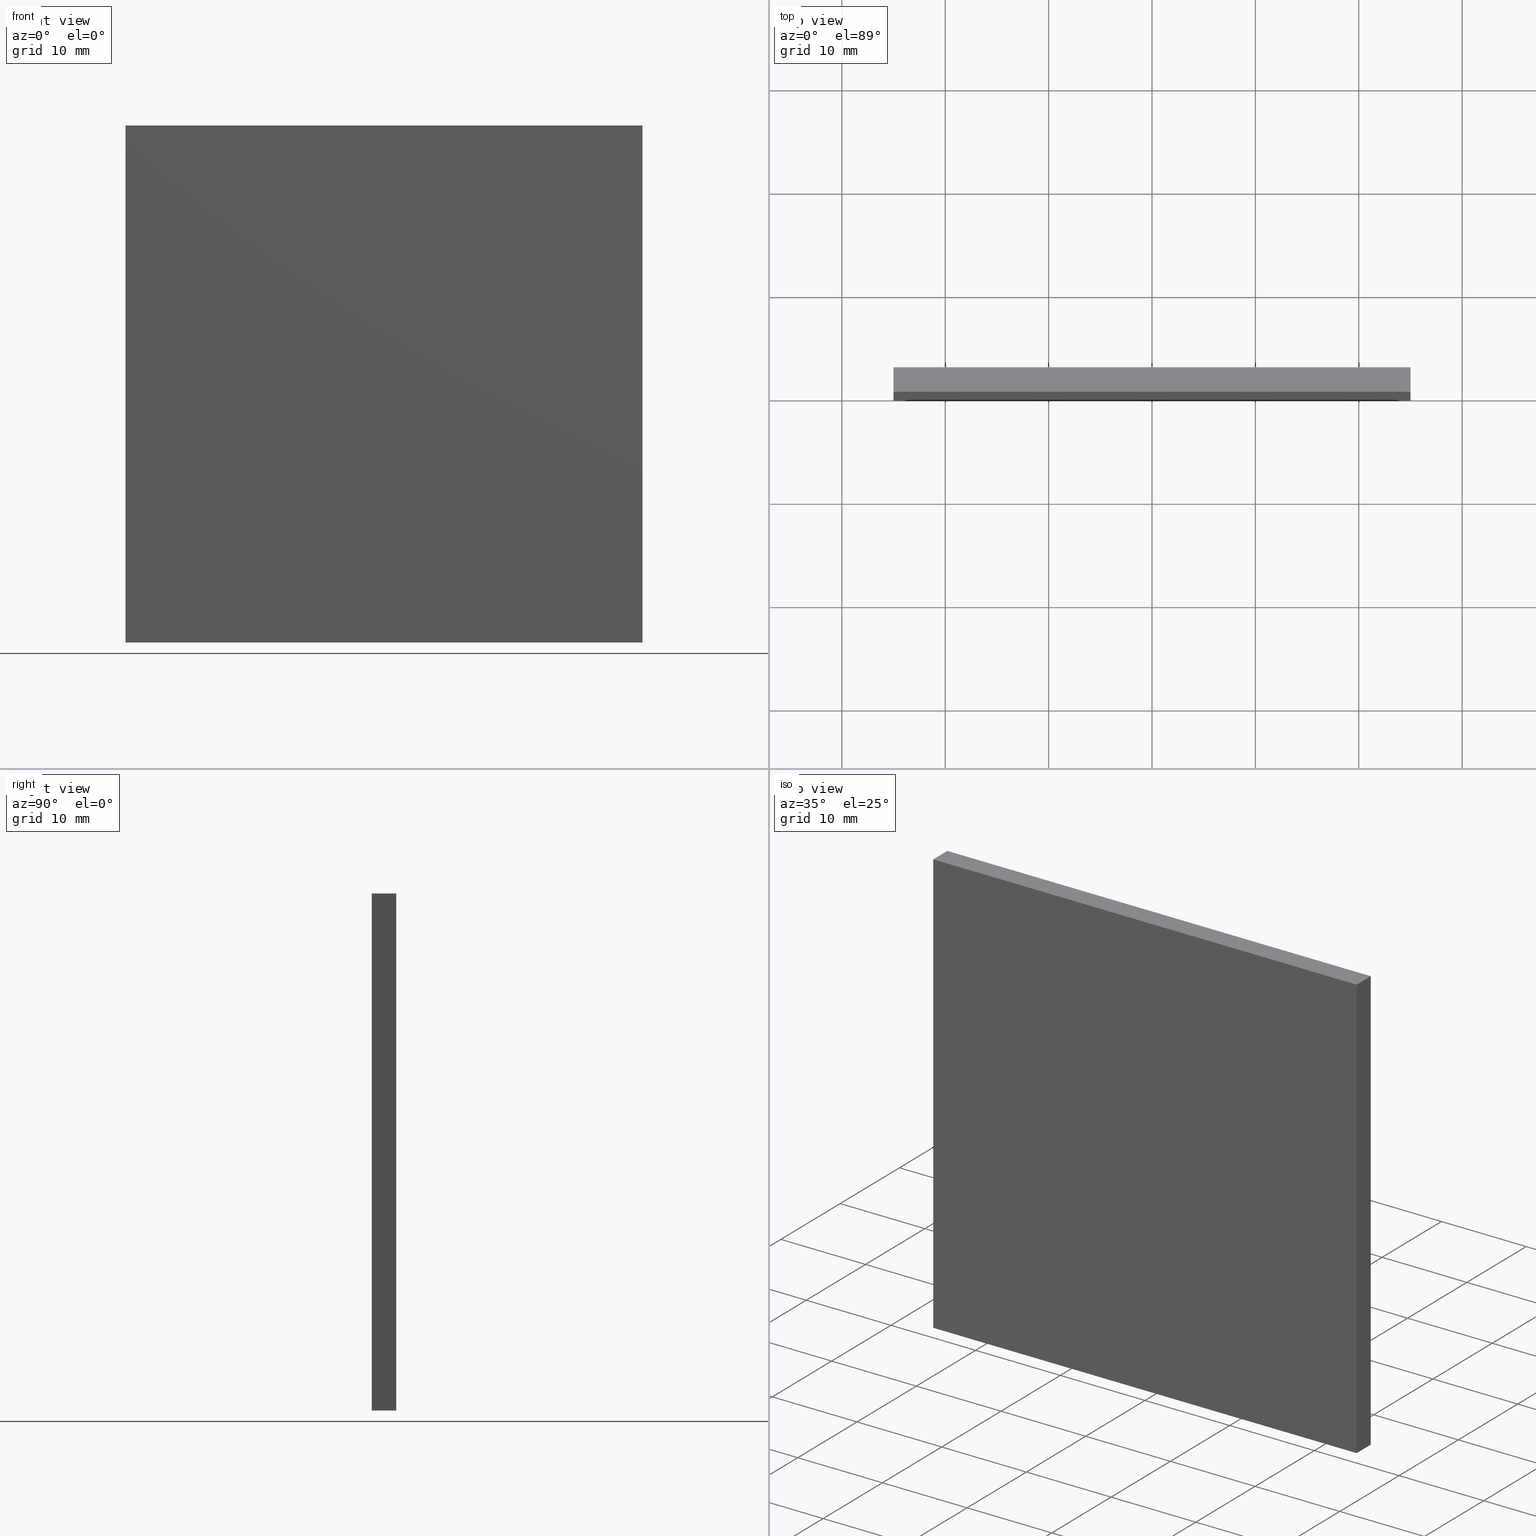
[diagram: canonical four-view strip — front | top / right | iso, engineering-drawing reading convention]
A machine part, canonical four-view strip (front | top / right | iso — engineering-drawing reading convention). The complete STEP part file that produces these views, byte-faithful:
ISO-10303-21;
HEADER;
FILE_DESCRIPTION (( 'STEP AP214' ),
    '1' );
FILE_NAME ('248609.STEP',
    '2019-08-06T06:06:45',
    ( 'user' ),
    ( '΢���й�' ),
    'SwSTEP 2.0',
    'SolidWorks 2016',
    '' );
FILE_SCHEMA (( 'AUTOMOTIVE_DESIGN' ));
ENDSEC;

DATA;
#1 = LINE ( 'NONE', #95, #177 ) ;
#2 = SURFACE_STYLE_USAGE ( .BOTH. , #91 ) ;
#3 = VECTOR ( 'NONE', #188, 1000.000000000000000 ) ;
#4 = CARTESIAN_POINT ( 'NONE',  ( 25.00000000000000000, 2.370000000000000100, -25.00000000000000400 ) ) ;
#5 = CARTESIAN_POINT ( 'NONE',  ( -25.00000000000000000, 2.370000000000000100, 24.99999999999999600 ) ) ;
#6 = PRESENTATION_LAYER_ASSIGNMENT (  '', '', ( #150 ) ) ;
#7 = ORIENTED_EDGE ( 'NONE', *, *, #22, .T. ) ;
#8 = EDGE_LOOP ( 'NONE', ( #94, #98, #54, #201 ) ) ;
#9 = ORIENTED_EDGE ( 'NONE', *, *, #180, .T. ) ;
#10 = EDGE_LOOP ( 'NONE', ( #71, #29, #23, #14 ) ) ;
#11 = VERTEX_POINT ( 'NONE', #141 ) ;
#12 = ADVANCED_FACE ( 'NONE', ( #17 ), #179, .F. ) ;
#13 = EDGE_CURVE ( 'NONE', #107, #34, #26, .T. ) ;
#14 = ORIENTED_EDGE ( 'NONE', *, *, #16, .F. ) ;
#15 = PRODUCT_DEFINITION_SHAPE ( 'NONE', 'NONE',  #33 ) ;
#16 = EDGE_CURVE ( 'NONE', #195, #107, #1, .T. ) ;
#17 = FACE_OUTER_BOUND ( 'NONE', #79, .T. ) ;
#18 = ORIENTED_EDGE ( 'NONE', *, *, #200, .T. ) ;
#19 = DIRECTION ( 'NONE',  ( 1.000000000000000000, 0.0000000000000000000, 0.0000000000000000000 ) ) ;
#20 = DIRECTION ( 'NONE',  ( -0.0000000000000000000, -1.000000000000000000, -0.0000000000000000000 ) ) ;
#21 = PRODUCT_DEFINITION_FORMATION_WITH_SPECIFIED_SOURCE ( '�κ�', '', #161, .NOT_KNOWN. ) ;
#22 = EDGE_CURVE ( 'NONE', #39, #11, #118, .T. ) ;
#23 = ORIENTED_EDGE ( 'NONE', *, *, #13, .F. ) ;
#24 = PLANE ( 'NONE',  #194 ) ;
#25 = CARTESIAN_POINT ( 'NONE',  ( 25.00000000000000000, 2.370000000000000100, 24.99999999999999600 ) ) ;
#26 = LINE ( 'NONE', #85, #48 ) ;
#27 = DIRECTION ( 'NONE',  ( -0.0000000000000000000, -0.0000000000000000000, 1.000000000000000000 ) ) ;
#28 = ORIENTED_EDGE ( 'NONE', *, *, #13, .T. ) ;
#29 = ORIENTED_EDGE ( 'NONE', *, *, #102, .F. ) ;
#30 = ADVANCED_FACE ( 'NONE', ( #158 ), #73, .T. ) ;
#31 = PRODUCT_CONTEXT ( 'NONE', #59, 'mechanical' ) ;
#32 = DIRECTION ( 'NONE',  ( 1.000000000000000000, 0.0000000000000000000, 0.0000000000000000000 ) ) ;
#33 = PRODUCT_DEFINITION ( 'δ֪', '', #21, #129 ) ;
#34 = VERTEX_POINT ( 'NONE', #51 ) ;
#35 = PLANE ( 'NONE',  #121 ) ;
#36 = EDGE_CURVE ( 'NONE', #11, #64, #197, .T. ) ;
#37 = DIRECTION ( 'NONE',  ( 0.0000000000000000000, -1.000000000000000000, 0.0000000000000000000 ) ) ;
#38 = DIRECTION ( 'NONE',  ( -1.000000000000000000, 0.0000000000000000000, -0.0000000000000000000 ) ) ;
#39 = VERTEX_POINT ( 'NONE', #152 ) ;
#40 = FILL_AREA_STYLE ('',( #170 ) ) ;
#41 = DIRECTION ( 'NONE',  ( -0.0000000000000000000, -1.000000000000000000, -0.0000000000000000000 ) ) ;
#42 = FACE_OUTER_BOUND ( 'NONE', #135, .T. ) ;
#43 = EDGE_LOOP ( 'NONE', ( #28, #77, #75, #50 ) ) ;
#44 = ORIENTED_EDGE ( 'NONE', *, *, #46, .T. ) ;
#45 = AXIS2_PLACEMENT_3D ( 'NONE', #66, #113, #115 ) ;
#46 = EDGE_CURVE ( 'NONE', #175, #39, #87, .T. ) ;
#47 = ORIENTED_EDGE ( 'NONE', *, *, #200, .F. ) ;
#48 = VECTOR ( 'NONE', #27, 1000.000000000000000 ) ;
#49 = DIRECTION ( 'NONE',  ( -1.000000000000000000, -0.0000000000000000000, -0.0000000000000000000 ) ) ;
#50 = ORIENTED_EDGE ( 'NONE', *, *, #143, .T. ) ;
#51 = CARTESIAN_POINT ( 'NONE',  ( -25.00000000000000000, 0.0000000000000000000, 24.99999999999999600 ) ) ;
#52 = EDGE_LOOP ( 'NONE', ( #9, #47, #116, #139 ) ) ;
#53 =( LENGTH_UNIT ( ) NAMED_UNIT ( * ) SI_UNIT ( .MILLI., .METRE. ) );
#54 = ORIENTED_EDGE ( 'NONE', *, *, #36, .F. ) ;
#55 = VECTOR ( 'NONE', #192, 1000.000000000000000 ) ;
#56 = MECHANICAL_DESIGN_GEOMETRIC_PRESENTATION_REPRESENTATION (  '', ( #81 ), #190 ) ;
#57 = VECTOR ( 'NONE', #20, 1000.000000000000000 ) ;
#58 = VECTOR ( 'NONE', #137, 1000.000000000000000 ) ;
#59 = APPLICATION_CONTEXT ( 'automotive_design' ) ;
#60 = VECTOR ( 'NONE', #41, 1000.000000000000000 ) ;
#61 = CARTESIAN_POINT ( 'NONE',  ( -25.00000000000000000, 0.0000000000000000000, -25.00000000000000400 ) ) ;
#62 = ADVANCED_FACE ( 'NONE', ( #189 ), #198, .F. ) ;
#63 = CARTESIAN_POINT ( 'NONE',  ( -25.00000000000000000, 2.370000000000000100, 24.99999999999999600 ) ) ;
#64 = VERTEX_POINT ( 'NONE', #25 ) ;
#65 = CARTESIAN_POINT ( 'NONE',  ( 25.00000000000000000, 2.370000000000000100, 24.99999999999999600 ) ) ;
#66 = CARTESIAN_POINT ( 'NONE',  ( 25.00000000000000000, 2.370000000000000100, 24.99999999999999600 ) ) ;
#67 =( LENGTH_UNIT ( ) NAMED_UNIT ( * ) SI_UNIT ( .MILLI., .METRE. ) );
#68 = SHAPE_DEFINITION_REPRESENTATION ( #15, #110 ) ;
#69 = DIRECTION ( 'NONE',  ( 0.0000000000000000000, 0.0000000000000000000, 1.000000000000000000 ) ) ;
#70 = DIRECTION ( 'NONE',  ( -1.000000000000000000, -0.0000000000000000000, -0.0000000000000000000 ) ) ;
#71 = ORIENTED_EDGE ( 'NONE', *, *, #180, .F. ) ;
#72 = VECTOR ( 'NONE', #32, 1000.000000000000000 ) ;
#73 = PLANE ( 'NONE',  #130 ) ;
#74 = FILL_AREA_STYLE ('',( #82 ) ) ;
#75 = ORIENTED_EDGE ( 'NONE', *, *, #22, .F. ) ;
#76 = DIRECTION ( 'NONE',  ( -0.0000000000000000000, -0.0000000000000000000, 1.000000000000000000 ) ) ;
#77 = ORIENTED_EDGE ( 'NONE', *, *, #127, .F. ) ;
#78 = ADVANCED_FACE ( 'NONE', ( #99 ), #35, .F. ) ;
#79 = EDGE_LOOP ( 'NONE', ( #157, #202, #86, #18 ) ) ;
#80 = LINE ( 'NONE', #65, #60 ) ;
#81 = STYLED_ITEM ( 'NONE', ( #167 ), #110 ) ;
#82 = FILL_AREA_STYLE_COLOUR ( '', #108 ) ;
#83 = PRESENTATION_LAYER_ASSIGNMENT (  '', '', ( #81 ) ) ;
#84 = VECTOR ( 'NONE', #76, 1000.000000000000000 ) ;
#85 = CARTESIAN_POINT ( 'NONE',  ( -25.00000000000000000, 0.0000000000000000000, 24.99999999999999600 ) ) ;
#86 = ORIENTED_EDGE ( 'NONE', *, *, #46, .F. ) ;
#87 = LINE ( 'NONE', #117, #159 ) ;
#88 = DIRECTION ( 'NONE',  ( 0.0000000000000000000, -0.0000000000000000000, -1.000000000000000000 ) ) ;
#89 = DIRECTION ( 'NONE',  ( 0.0000000000000000000, 0.0000000000000000000, -1.000000000000000000 ) ) ;
#90 = CARTESIAN_POINT ( 'NONE',  ( -25.00000000000000000, 2.370000000000000100, 24.99999999999999600 ) ) ;
#91 = SURFACE_SIDE_STYLE ('',( #164 ) ) ;
#92 = SURFACE_SIDE_STYLE ('',( #122 ) ) ;
#93 = LINE ( 'NONE', #126, #58 ) ;
#94 = ORIENTED_EDGE ( 'NONE', *, *, #102, .T. ) ;
#95 = CARTESIAN_POINT ( 'NONE',  ( -25.00000000000000000, 0.0000000000000000000, -25.00000000000000400 ) ) ;
#96 = ORIENTED_EDGE ( 'NONE', *, *, #36, .T. ) ;
#97 = AXIS2_PLACEMENT_3D ( 'NONE', #5, #183, #38 ) ;
#98 = ORIENTED_EDGE ( 'NONE', *, *, #163, .F. ) ;
#99 = FACE_OUTER_BOUND ( 'NONE', #43, .T. ) ;
#100 = CARTESIAN_POINT ( 'NONE',  ( 25.00000000000000000, 2.370000000000000100, 24.99999999999999600 ) ) ;
#101 = DIRECTION ( 'NONE',  ( -0.0000000000000000000, -1.000000000000000000, -0.0000000000000000000 ) ) ;
#102 = EDGE_CURVE ( 'NONE', #34, #196, #93, .T. ) ;
#103 = CLOSED_SHELL ( 'NONE', ( #193, #12, #78, #62, #145, #30 ) ) ;
#104 = AXIS2_PLACEMENT_3D ( 'NONE', #119, #69, #178 ) ;
#105 = DIRECTION ( 'NONE',  ( 0.0000000000000000000, 0.0000000000000000000, 1.000000000000000000 ) ) ;
#106 = DIRECTION ( 'NONE',  ( 1.000000000000000000, -0.0000000000000000000, 0.0000000000000000000 ) ) ;
#107 = VERTEX_POINT ( 'NONE', #61 ) ;
#108 = COLOUR_RGB ( '',1.000000000000000000, 1.000000000000000000, 1.000000000000000000 ) ;
#109 = MECHANICAL_DESIGN_GEOMETRIC_PRESENTATION_REPRESENTATION (  '', ( #150 ), #186 ) ;
#110 = ADVANCED_BREP_SHAPE_REPRESENTATION ( '248609', ( #176, #125 ), #142 ) ;
#111 =( NAMED_UNIT ( * ) SI_UNIT ( $, .STERADIAN. ) SOLID_ANGLE_UNIT ( ) );
#112 =( NAMED_UNIT ( * ) PLANE_ANGLE_UNIT ( ) SI_UNIT ( $, .RADIAN. ) );
#113 = DIRECTION ( 'NONE',  ( -1.000000000000000000, 0.0000000000000000000, 0.0000000000000000000 ) ) ;
#114 = SURFACE_STYLE_USAGE ( .BOTH. , #92 ) ;
#115 = DIRECTION ( 'NONE',  ( 0.0000000000000000000, 0.0000000000000000000, 1.000000000000000000 ) ) ;
#116 = ORIENTED_EDGE ( 'NONE', *, *, #181, .F. ) ;
#117 = CARTESIAN_POINT ( 'NONE',  ( -25.00000000000000000, 2.370000000000000100, -25.00000000000000400 ) ) ;
#118 = LINE ( 'NONE', #63, #84 ) ;
#119 = CARTESIAN_POINT ( 'NONE',  ( -25.00000000000000000, 2.370000000000000100, -25.00000000000000400 ) ) ;
#120 = UNCERTAINTY_MEASURE_WITH_UNIT (LENGTH_MEASURE( 1.000000000000000100E-005 ), #199, 'distance_accuracy_value', 'NONE');
#121 = AXIS2_PLACEMENT_3D ( 'NONE', #123, #106, #89 ) ;
#122 = SURFACE_STYLE_FILL_AREA ( #74 ) ;
#123 = CARTESIAN_POINT ( 'NONE',  ( -25.00000000000000000, 2.370000000000000100, 24.99999999999999600 ) ) ;
#124 = FACE_OUTER_BOUND ( 'NONE', #52, .T. ) ;
#125 = AXIS2_PLACEMENT_3D ( 'NONE', #136, #105, #19 ) ;
#126 = CARTESIAN_POINT ( 'NONE',  ( -25.00000000000000000, 0.0000000000000000000, 24.99999999999999600 ) ) ;
#127 = EDGE_CURVE ( 'NONE', #11, #34, #168, .T. ) ;
#128 = DIRECTION ( 'NONE',  ( 0.0000000000000000000, -1.000000000000000000, 0.0000000000000000000 ) ) ;
#129 = PRODUCT_DEFINITION_CONTEXT ( 'detailed design', #147, 'design' ) ;
#130 = AXIS2_PLACEMENT_3D ( 'NONE', #187, #128, #88 ) ;
#131 = APPLICATION_PROTOCOL_DEFINITION ( 'draft international standard', 'automotive_design', 1998, #59 ) ;
#132 = CARTESIAN_POINT ( 'NONE',  ( -25.00000000000000000, 2.370000000000000100, -25.00000000000000400 ) ) ;
#133 = APPLICATION_PROTOCOL_DEFINITION ( 'draft international standard', 'automotive_design', 1998, #147 ) ;
#134 = PRODUCT_RELATED_PRODUCT_CATEGORY ( 'part', '', ( #161 ) ) ;
#135 = EDGE_LOOP ( 'NONE', ( #166, #44, #7, #96 ) ) ;
#136 = CARTESIAN_POINT ( 'NONE',  ( 0.0000000000000000000, 0.0000000000000000000, 0.0000000000000000000 ) ) ;
#137 = DIRECTION ( 'NONE',  ( 1.000000000000000000, 0.0000000000000000000, 0.0000000000000000000 ) ) ;
#138 = LINE ( 'NONE', #4, #55 ) ;
#139 = ORIENTED_EDGE ( 'NONE', *, *, #163, .T. ) ;
#140 = LINE ( 'NONE', #132, #57 ) ;
#141 = CARTESIAN_POINT ( 'NONE',  ( -25.00000000000000000, 2.370000000000000100, 24.99999999999999600 ) ) ;
#142 =( GEOMETRIC_REPRESENTATION_CONTEXT ( 3 ) GLOBAL_UNCERTAINTY_ASSIGNED_CONTEXT ( ( #120 ) ) GLOBAL_UNIT_ASSIGNED_CONTEXT ( ( #199, #112, #111 ) ) REPRESENTATION_CONTEXT ( 'NONE', 'WORKASPACE' ) );
#143 = EDGE_CURVE ( 'NONE', #39, #107, #140, .T. ) ;
#144 = COLOUR_RGB ( '',1.000000000000000000, 1.000000000000000000, 1.000000000000000000 ) ;
#145 = ADVANCED_FACE ( 'NONE', ( #42 ), #24, .F. ) ;
#146 = CARTESIAN_POINT ( 'NONE',  ( 25.00000000000000000, 2.370000000000000100, -25.00000000000000400 ) ) ;
#147 = APPLICATION_CONTEXT ( 'automotive_design' ) ;
#148 =( NAMED_UNIT ( * ) SI_UNIT ( $, .STERADIAN. ) SOLID_ANGLE_UNIT ( ) );
#149 = UNCERTAINTY_MEASURE_WITH_UNIT (LENGTH_MEASURE( 1.000000000000000100E-005 ), #67, 'distance_accuracy_value', 'NONE');
#150 = STYLED_ITEM ( 'NONE', ( #155 ), #176 ) ;
#151 = CARTESIAN_POINT ( 'NONE',  ( 0.0000000000000000000, 2.370000000000000100, 0.0000000000000000000 ) ) ;
#152 = CARTESIAN_POINT ( 'NONE',  ( -25.00000000000000000, 2.370000000000000100, -25.00000000000000400 ) ) ;
#153 = VECTOR ( 'NONE', #160, 1000.000000000000000 ) ;
#154 = DIRECTION ( 'NONE',  ( 0.0000000000000000000, -0.0000000000000000000, -1.000000000000000000 ) ) ;
#155 = PRESENTATION_STYLE_ASSIGNMENT (( #114 ) ) ;
#156 =( NAMED_UNIT ( * ) PLANE_ANGLE_UNIT ( ) SI_UNIT ( $, .RADIAN. ) );
#157 = ORIENTED_EDGE ( 'NONE', *, *, #16, .T. ) ;
#158 = FACE_OUTER_BOUND ( 'NONE', #10, .T. ) ;
#159 = VECTOR ( 'NONE', #49, 1000.000000000000000 ) ;
#160 = DIRECTION ( 'NONE',  ( 0.0000000000000000000, 0.0000000000000000000, -1.000000000000000000 ) ) ;
#161 = PRODUCT ( '248609', '248609', '', ( #31 ) ) ;
#162 = CARTESIAN_POINT ( 'NONE',  ( 25.00000000000000000, 0.0000000000000000000, -25.00000000000000400 ) ) ;
#163 = EDGE_CURVE ( 'NONE', #64, #196, #80, .T. ) ;
#164 = SURFACE_STYLE_FILL_AREA ( #40 ) ;
#165 = CARTESIAN_POINT ( 'NONE',  ( 25.00000000000000000, 0.0000000000000000000, 24.99999999999999600 ) ) ;
#166 = ORIENTED_EDGE ( 'NONE', *, *, #181, .T. ) ;
#167 = PRESENTATION_STYLE_ASSIGNMENT (( #2 ) ) ;
#168 = LINE ( 'NONE', #169, #172 ) ;
#169 = CARTESIAN_POINT ( 'NONE',  ( -25.00000000000000000, 2.370000000000000100, 24.99999999999999600 ) ) ;
#170 = FILL_AREA_STYLE_COLOUR ( '', #144 ) ;
#171 =( NAMED_UNIT ( * ) PLANE_ANGLE_UNIT ( ) SI_UNIT ( $, .RADIAN. ) );
#172 = VECTOR ( 'NONE', #101, 1000.000000000000000 ) ;
#173 = LINE ( 'NONE', #100, #3 ) ;
#174 =( NAMED_UNIT ( * ) SI_UNIT ( $, .STERADIAN. ) SOLID_ANGLE_UNIT ( ) );
#175 = VERTEX_POINT ( 'NONE', #146 ) ;
#176 = MANIFOLD_SOLID_BREP ( '͹̨-����1', #103 ) ;
#177 = VECTOR ( 'NONE', #70, 1000.000000000000000 ) ;
#178 = DIRECTION ( 'NONE',  ( 1.000000000000000000, 0.0000000000000000000, -0.0000000000000000000 ) ) ;
#179 = PLANE ( 'NONE',  #104 ) ;
#180 = EDGE_CURVE ( 'NONE', #196, #195, #184, .T. ) ;
#181 = EDGE_CURVE ( 'NONE', #64, #175, #173, .T. ) ;
#182 = CARTESIAN_POINT ( 'NONE',  ( 25.00000000000000000, 0.0000000000000000000, 24.99999999999999600 ) ) ;
#183 = DIRECTION ( 'NONE',  ( 0.0000000000000000000, 0.0000000000000000000, -1.000000000000000000 ) ) ;
#184 = LINE ( 'NONE', #165, #153 ) ;
#185 = PLANE ( 'NONE',  #45 ) ;
#186 =( GEOMETRIC_REPRESENTATION_CONTEXT ( 3 ) GLOBAL_UNCERTAINTY_ASSIGNED_CONTEXT ( ( #191 ) ) GLOBAL_UNIT_ASSIGNED_CONTEXT ( ( #53, #171, #174 ) ) REPRESENTATION_CONTEXT ( 'NONE', 'WORKASPACE' ) );
#187 = CARTESIAN_POINT ( 'NONE',  ( 0.0000000000000000000, 0.0000000000000000000, 0.0000000000000000000 ) ) ;
#188 = DIRECTION ( 'NONE',  ( 0.0000000000000000000, 0.0000000000000000000, -1.000000000000000000 ) ) ;
#189 = FACE_OUTER_BOUND ( 'NONE', #8, .T. ) ;
#190 =( GEOMETRIC_REPRESENTATION_CONTEXT ( 3 ) GLOBAL_UNCERTAINTY_ASSIGNED_CONTEXT ( ( #149 ) ) GLOBAL_UNIT_ASSIGNED_CONTEXT ( ( #67, #156, #148 ) ) REPRESENTATION_CONTEXT ( 'NONE', 'WORKASPACE' ) );
#191 = UNCERTAINTY_MEASURE_WITH_UNIT (LENGTH_MEASURE( 1.000000000000000100E-005 ), #53, 'distance_accuracy_value', 'NONE');
#192 = DIRECTION ( 'NONE',  ( -0.0000000000000000000, -1.000000000000000000, -0.0000000000000000000 ) ) ;
#193 = ADVANCED_FACE ( 'NONE', ( #124 ), #185, .F. ) ;
#194 = AXIS2_PLACEMENT_3D ( 'NONE', #151, #37, #154 ) ;
#195 = VERTEX_POINT ( 'NONE', #162 ) ;
#196 = VERTEX_POINT ( 'NONE', #182 ) ;
#197 = LINE ( 'NONE', #90, #72 ) ;
#198 = PLANE ( 'NONE',  #97 ) ;
#199 =( LENGTH_UNIT ( ) NAMED_UNIT ( * ) SI_UNIT ( .MILLI., .METRE. ) );
#200 = EDGE_CURVE ( 'NONE', #175, #195, #138, .T. ) ;
#201 = ORIENTED_EDGE ( 'NONE', *, *, #127, .T. ) ;
#202 = ORIENTED_EDGE ( 'NONE', *, *, #143, .F. ) ;
ENDSEC;
END-ISO-10303-21;
